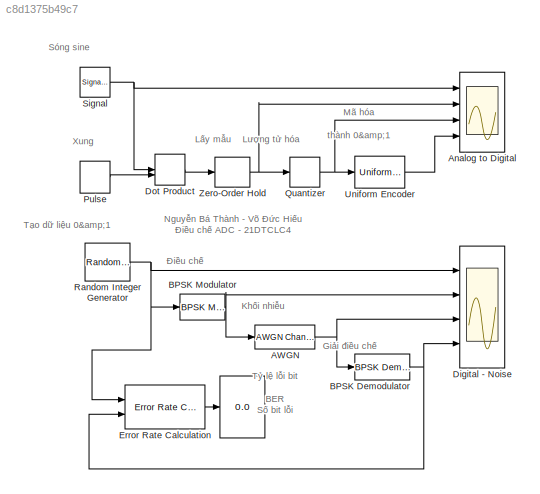
MODEL slx_c8d1375b49c7
KIND model
CONFIG AbsTol = auto
CONFIG FixedStep = 1e-6
CONFIG MaxStep = auto
CONFIG MinStep = auto
CONFIG RelTol = 1e-3
CONFIG SampleTimeConstraint = Unconstrained
CONFIG Solver = ode1
CONFIG SolverMode = Auto
CONFIG SolverName = ode1
CONFIG StartTime = 0.0
CONFIG StopTime = 50
BLOCK [Display]  
  Decimation = 1
  Ports = [1]
BLOCK [Reference] AWGN   REF=commchan3/AWGN
Channel
  Ports = [1, 1]
  SourceBlock = commchan3/AWGN\nChannel
  SourceType = AWGN Channel
  UserDataPersistent = on
BLOCK [Scope] Analog to Digital
  NumInputPorts = 4
  Ports = [4]
  ScopeSpecificationString = Simulink.scopes.TimeScopeBlockCfg('CurrentConfiguration', extmgr.ConfigurationSet(extmgr.Configuration('Core','General UI',true,'DisplayFullSourceName',true),extmgr.Configuration('Core','Source UI',true),extmgr.Configuration('Sources','WiredSimulink',true,'DataLoggingVariableName','ScopeData4'),extmgr.Configuration('Visuals','Time Domain',true,'SerializedDisplays',{struct('MinYLimReal','-0.86904',...<+1604ch>
BLOCK [Reference] BPSK Demodulator   REF=commdigbbndpm3/BPSK
Demodulator
Baseband
  Ports = [1, 1]
  SourceBlock = commdigbbndpm3/BPSK\nDemodulator\nBaseband
  SourceType = BPSK Demodulator Baseband
BLOCK [Reference] BPSK Modulator   REF=commdigbbndpm3/BPSK
Modulator
Baseband
  Ports = [1, 1]
  SourceBlock = commdigbbndpm3/BPSK\nModulator\nBaseband
  SourceType = BPSK Modulator Baseband
BLOCK [Scope] Digital - Noise
  NumInputPorts = 4
  Ports = [4]
  ScopeSpecificationString = Simulink.scopes.TimeScopeBlockCfg('CurrentConfiguration', extmgr.ConfigurationSet(extmgr.Configuration('Core','General UI',true,'DisplayFullSourceName',true),extmgr.Configuration('Core','Source UI',true),extmgr.Configuration('Sources','WiredSimulink',true,'DataLoggingVariableName','ScopeData1'),extmgr.Configuration('Visuals','Time Domain',true,'SerializedDisplays',{struct('MinYLimReal','-1','MaxYL...<+3557ch>
BLOCK [DotProduct] Dot Product
  OutDataTypeStr = Inherit: Inherit via internal rule
BLOCK [Reference] Error Rate Calculation  REF=commsink2/Error Rate
Calculation
  Ports = [2, 1]
  SourceBlock = commsink2/Error Rate\nCalculation
  SourceType = Error Rate Calculation
BLOCK [DiscretePulseGenerator] Pulse 
  Amplitude = 0.75
  Period = 1
  Ports = [0, 1]
  PulseType = Time based
  PulseWidth = 60
  SampleTime = 1e-6
BLOCK [Quantizer] Quantizer
  QuantizationInterval = 0.66
BLOCK [Reference] Random Integer Generator  REF=commrandsrc3/Random Integer
Generator
  Ports = [0, 1]
  SourceBlock = commrandsrc3/Random Integer\nGenerator
  SourceType = Random Integer Generator
BLOCK [SignalGenerator] Signal 
  Amplitude = 0.75
  Frequency = 0.035
  Ports = [0, 1]
BLOCK [Reference] Uniform Encoder  REF=dspquant2/Uniform
Encoder
  Ports = [1, 1]
  SourceBlock = dspquant2/Uniform\nEncoder
  SourceType = Uniform Encoder
BLOCK [ZeroOrderHold] Zero-Order Hold
  SampleTime = 1e-6
ANNOTATION (root): Mã hóa thành 0&1
ANNOTATION (root): Khối nhiễu
ANNOTATION (root): Lượng tử hóa
ANNOTATION (root): Lấy mẫu
ANNOTATION (root): Nguyễn Bá Thành - Võ Đức Hiếu Điều chế ADC - 21DTCLC4
ANNOTATION (root): Tạo dữ liệu 0&1
ANNOTATION (root): Giải điều chế
ANNOTATION (root): Sóng sine
ANNOTATION (root): Tỷ lệ lỗi bit BER Số bit lỗi
ANNOTATION (root): Xung
ANNOTATION (root): Điều chế
NET AWGN :1 -> BPSK Demodulator :1, Digital - Noise:3
NET BPSK Demodulator :1 -> Digital - Noise:4, Error Rate Calculation:2
NET BPSK Modulator :1 -> AWGN :1, Digital - Noise:2
LINE Dot Product:1 -> Zero-Order Hold:1
LINE Error Rate Calculation:1 ->  :1
LINE Pulse :1 -> Dot Product:2
NET Quantizer:1 -> Analog to Digital:3, Uniform Encoder:1
NET Random Integer Generator:1 -> BPSK Modulator :1, Digital - Noise:1, Error Rate Calculation:1
NET Signal :1 -> Analog to Digital:1, Dot Product:1
LINE Uniform Encoder:1 -> Analog to Digital:4
NET Zero-Order Hold:1 -> Analog to Digital:2, Quantizer:1
note: NET lines group one-source signal fan-out (src -> all destinations, sorted); 1:1 wires keep LINE
